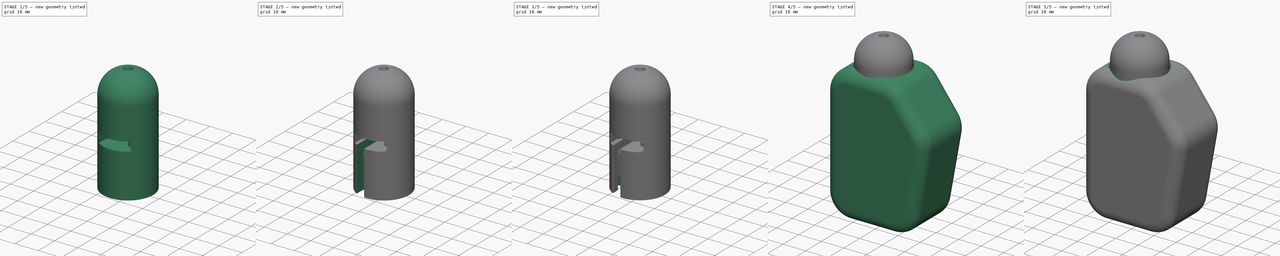
[diagram: build sequence overview — one tinted view per stage of 5, left to right]
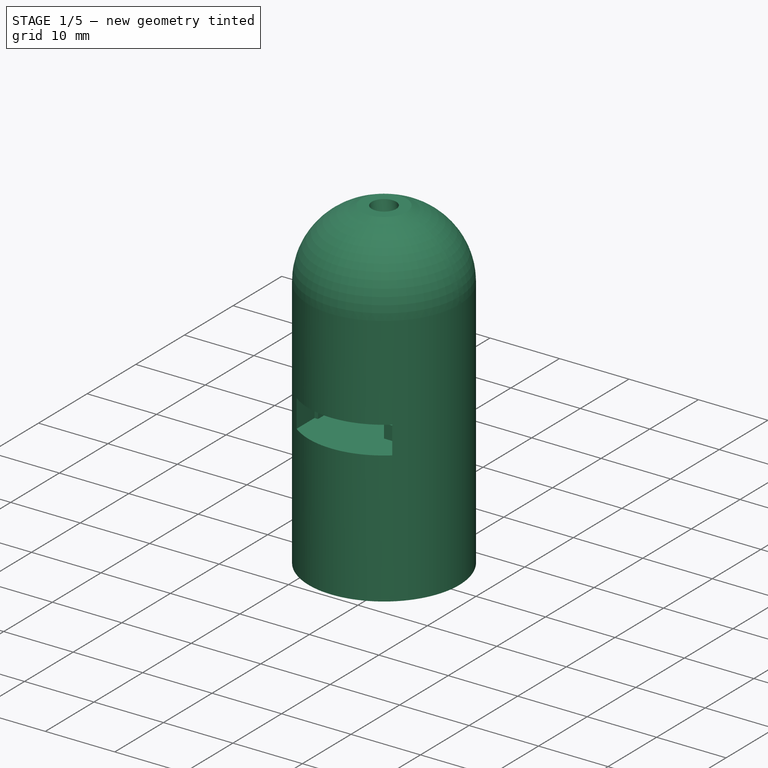
[diagram: stage 1 of 5 — iso view after this stage's code; geometry added in this stage tinted green]
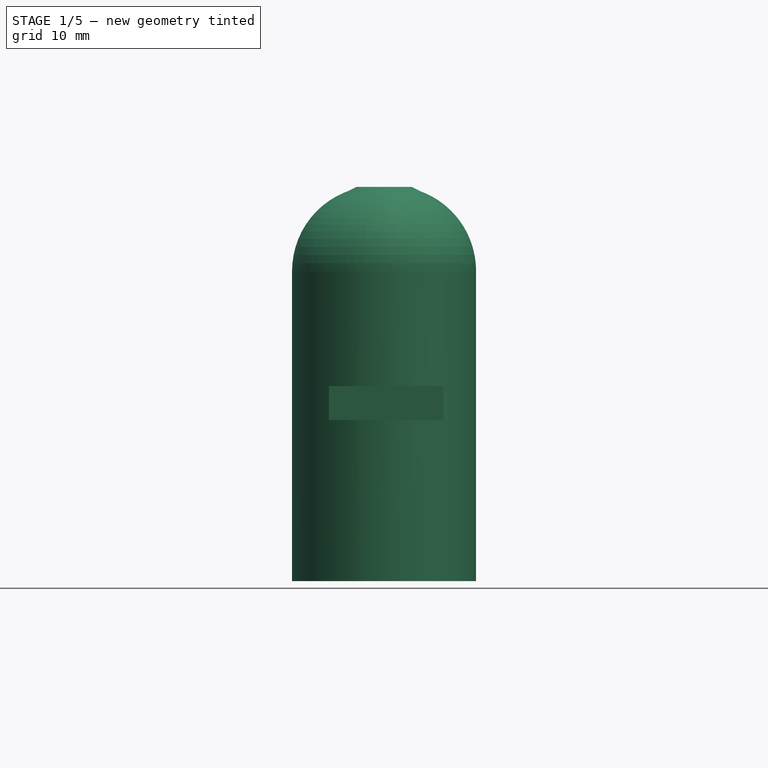
[diagram: stage 1 of 5 — front view after this stage's code; geometry added in this stage tinted green]
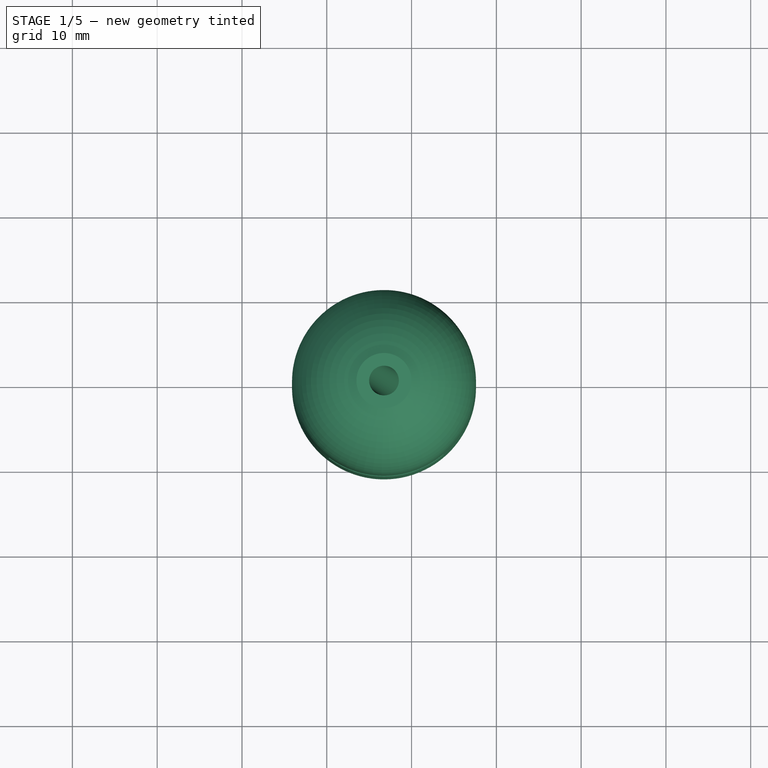
[diagram: stage 1 of 5 — top view after this stage's code; geometry added in this stage tinted green]
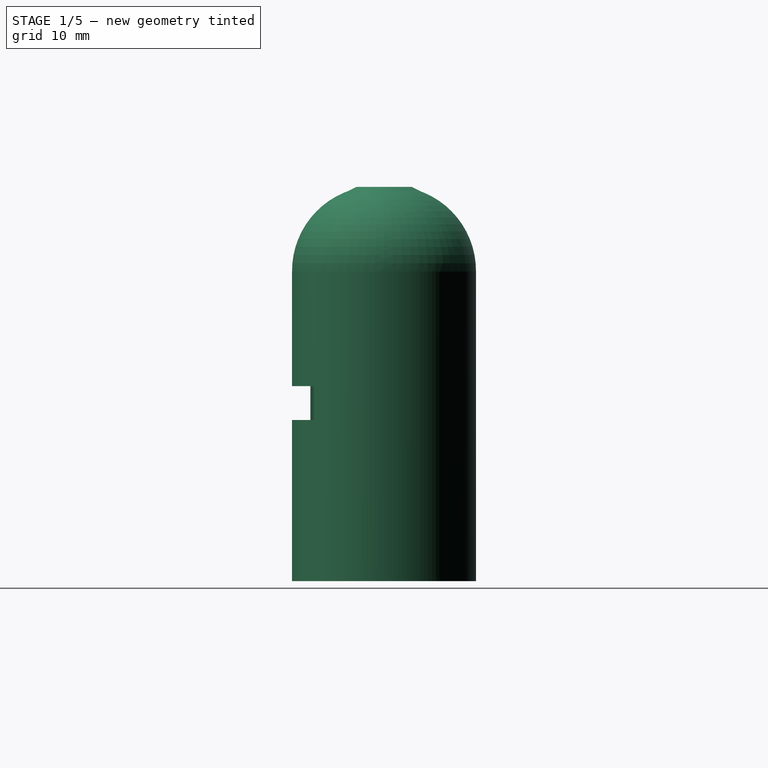
[diagram: stage 1 of 5 — right view after this stage's code; geometry added in this stage tinted green]
FCSTD DOCUMENT  (FreeCAD 1.0RUnknown)
Label: Device_V6
License: All rights reserved
objects: PartDesign::Fillet×32, Sketcher::SketchObject×21, PartDesign::Pocket×12, PartDesign::Pad×5, PartDesign::Revolution×2, Part::Feature×2, PartDesign::SubtractiveLoft×2, PartDesign::Body×2, PartDesign::SubtractivePipe×1
note: 208 computed .brp shape members not serialized (recipe doc carries the construction recipe); baked Part::Feature solids carry a one-line shape summary decoded from their .brp

FEATURE [Sketcher::SketchObject] Sketch003
  ArcFitTolerance = 1e-06
  AttachmentSupport = -> [XZ_Plane001]
  FullyConstrained = true
  MakeInternals = false
  MapMode = 5
  Placement = pos=(0,0,0) rot=(1,0,0;1.5708rad)
  sketch-geometry (9):
    g0: LineSegment StartX=19 StartY=87 StartZ=0 EndX=19 EndY=77 EndZ=0
    g1: LineSegment StartX=19 StartY=77 StartZ=0 EndX=27.6 EndY=77 EndZ=0
    g2: LineSegment StartX=19 StartY=87 StartZ=0 EndX=20 EndY=87 EndZ=0
    g3: LineSegment StartX=20 StartY=87 StartZ=0 EndX=21 EndY=86.5 EndZ=0
    g4: ArcOfCircle CenterX=17.6068 CenterY=77.1 CenterZ=0 NormalX=0 NormalY=0 NormalZ=1 AngleXU=0 Radius=9.99368 StartAngle=6.27318 EndAngle=7.50756
    g5: LineSegment [constr] StartX=0 StartY=0 StartZ=0 EndX=27.6 EndY=0 EndZ=0
    g6: LineSegment [constr] StartX=27.6 StartY=0 StartZ=0 EndX=27.6 EndY=77 EndZ=0
    g7: LineSegment [constr] StartX=27.6 StartY=77 StartZ=0 EndX=0 EndY=77 EndZ=0
    g8: LineSegment [constr] StartX=0 StartY=77 StartZ=0 EndX=0 EndY=0 EndZ=0
  constraints (26):
    c: Vertical(g0)
    c: Coincident(g0,g1)
    c: Horizontal(g1)
    c: Coincident(g0,g2)
    c: Horizontal(g2)
    c: Coincident(g2,g3)
    c: Coincident(g4,g3)
    c: Coincident(g4,g1)
    c: DistanceY(g0,g0) = 10
    c: DistanceY(g3,g2) = 0.5
    c: DistanceX(g2,g2) = 1
    c: DistanceX(g2,g3) = 1
    c: DistanceX(g1,g1) = 8.6
    c: Coincident(g5,g6)
    c: Coincident(g6,g7)
    c: Coincident(g7,g8)
    c: Coincident(g8,g5)
    c: Horizontal(g5)
    c: Horizontal(g7)
    c: Vertical(g6)
    c: Vertical(g8)
    c: Coincident(g5,g-1)
    c: Coincident(g6,g1)
    c: DistanceY(g8,g8) = 77
    c: DistanceX(g7,g7) = 27.6
    c: DistanceY(g0,g4) = 0.1
FEATURE [Sketcher::SketchObject] Sketch004
  ArcFitTolerance = 1e-06
  AttachmentSupport = -> [XZ_Plane001]
  FullyConstrained = true
  MakeInternals = false
  MapMode = 5
  Placement = pos=(0,0,0) rot=(1,0,0;1.5708rad)
  sketch-geometry (7):
    g0: LineSegment StartX=16.75 StartY=87 StartZ=0 EndX=16.75 EndY=77 EndZ=0
    g1: LineSegment [constr] StartX=0 StartY=0 StartZ=0 EndX=27.5 EndY=0 EndZ=0
    g2: LineSegment [constr] StartX=27.5 StartY=0 StartZ=0 EndX=27.5 EndY=77 EndZ=0
    g3: LineSegment [constr] StartX=27.5 StartY=77 StartZ=0 EndX=0 EndY=77 EndZ=0
    g4: LineSegment [constr] StartX=0 StartY=77 StartZ=0 EndX=0 EndY=0 EndZ=0
    g5: GeomPoint [constr] X=10 Y=77 Z=0
    g6: GeomPoint [constr] X=23.5 Y=77 Z=0
  constraints (18):
    c: Vertical(g0)
    c: DistanceY(g0,g0) = 10
    c: Coincident(g1,g2)
    c: Coincident(g2,g3)
    c: Coincident(g3,g4)
    c: Coincident(g4,g1)
    c: Horizontal(g1)
    c: Horizontal(g3)
    c: Vertical(g2)
    c: Vertical(g4)
    c: Coincident(g1,g-1)
    c: DistanceY(g4,g4) = 77
    c: DistanceX(g3,g3) = 27.5
    c: PointOnObject(g5,g3)
    c: PointOnObject(g6,g3)
    c: DistanceX(g6,g2) = 4
    c: DistanceX(g3,g5) = 10
    c: Symmetric(g5,g6,g0)
FEATURE [PartDesign::Revolution] Revolution
  Angle = 360
  Angle2 = 60
  Axis = (0,-2e-16,-1)
  Base = (16.75,1.93e-14,87)
  Placement = pos=(0,0,0) rot=(1,0,0;1.5708rad)
  Profile = -> Sketch003
  ReferenceAxis = -> Sketch004 [Edge1]
  Refine = true
  Reversed = true
  Suppressed = false
  Type = 0
FEATURE [PartDesign::Pad] Pad001
  BaseFeature = -> Revolution
  Direction = (0,-2e-16,-1)
  Length = 36.5
  Length2 = 10
  Placement = pos=(0,0,0) rot=(1,0,0;1.5708rad)
  Profile = -> Revolution [Face2]
  Refine = true
  Suppressed = false
  Type = 0
FEATURE [Part::Feature] Part__Feature001  label="BME280-5V"
  Placement = pos=(10.5,-5,61.5) rot=(0,0,1;0rad)
  shape: bbox 13 x 10 x 3.53 mm, 88 faces (baked)
FEATURE [Sketcher::SketchObject] Sketch012
  ArcFitTolerance = 1e-06
  AttachmentSupport = -> [XZ_Plane001]
  FullyConstrained = true
  MakeInternals = false
  MapMode = 5
  Placement = pos=(0,0,0) rot=(1,0,0;1.5708rad)
  sketch-geometry (4):
    g0: LineSegment StartX=10.25 StartY=63.5 StartZ=0 EndX=10.25 EndY=59.5 EndZ=0
    g1: LineSegment StartX=10.25 StartY=59.5 StartZ=0 EndX=23.75 EndY=59.5 EndZ=0
    g2: LineSegment StartX=23.75 StartY=59.5 StartZ=0 EndX=23.75 EndY=63.5 EndZ=0
    g3: LineSegment StartX=23.75 StartY=63.5 StartZ=0 EndX=10.25 EndY=63.5 EndZ=0
  constraints (12):
    c: Coincident(g0,g1)
    c: Coincident(g1,g2)
    c: Coincident(g2,g3)
    c: Coincident(g3,g0)
    c: Vertical(g0)
    c: Vertical(g2)
    c: Horizontal(g1)
    c: Horizontal(g3)
    c: Distance(g0,g2) = 13.5
    c: Distance(g1,g3) = 4
    c: DistanceY(g-1,g0) = 59.5
    c: DistanceX(g-1,g0) = 10.25
FEATURE [PartDesign::Pocket] Pocket004
  BaseFeature = -> Pad001
  Direction = (0,1,-2e-16)
  Length = 5
  Length2 = 13
  Placement = pos=(0,0,0) rot=(1,0,0;1.5708rad)
  Profile = -> Sketch012
  ReferenceAxis = -> Sketch012 [N_Axis]
  Refine = true
  Suppressed = false
  Type = 4
FEATURE [Sketcher::SketchObject] Sketch013
  ArcFitTolerance = 1e-06
  AttachmentSupport = -> [Pocket004]
  FullyConstrained = true
  MakeInternals = false
  MapMode = 5
  Placement = pos=(0,2.79e-14,63.5) rot=(1,0,0;3.14159rad)
  sketch-geometry (2):
    g0: Circle CenterX=21 CenterY=2.3 CenterZ=0 NormalX=0 NormalY=0 NormalZ=1 AngleXU=0 Radius=2
    g1: Circle CenterX=21 CenterY=2.3 CenterZ=0 NormalX=0 NormalY=0 NormalZ=1 AngleXU=0 Radius=3.3
  constraints (5):
    c: Diameter(g0) = 4
    c: DistanceY(g-1,g0) = 2.3
    c: DistanceX(g-1,g0) = 21
    c: Diameter(g1) = 6.6
    c: Coincident(g1,g0)
FEATURE [Sketcher::SketchObject] Sketch015
  ArcFitTolerance = 1e-06
  AttachmentSupport = -> [Pocket004]
  ExternalGeometry = -> [Pocket004]
  FullyConstrained = true
  MakeInternals = false
  MapMode = 5
  Placement = pos=(0,3.83e-14,87) rot=(0,0,1;3.14159rad)
  sketch-geometry (1):
    g0: Circle CenterX=-16.75 CenterY=0 CenterZ=0 NormalX=0 NormalY=0 NormalZ=1 AngleXU=0 Radius=2.25
  constraints (2):
    c: Coincident(g0,g-3)
    c: Equal(g0,g-3)
FEATURE [PartDesign::Pad] Pad002
  BaseFeature = -> Pocket004
  Direction = (0,0,1)
  Length = 23.5
  Length2 = 10
  Placement = pos=(0,0,0) rot=(1,0,0;1.5708rad)
  Profile = -> Sketch015
  ReferenceAxis = -> Sketch015 [N_Axis]
  Refine = true
  Reversed = true
  Suppressed = false
  Type = 0
FEATURE [PartDesign::Pocket] Pocket005
  BaseFeature = -> Pad002
  Direction = (0,0,1)
  Length = 1
  Length2 = 5
  Placement = pos=(0,0,0) rot=(1,0,0;1.5708rad)
  Profile = -> Sketch013
  ReferenceAxis = -> Sketch013 [N_Axis]
  Refine = true
  Suppressed = false
  Type = 0
FEATURE [Sketcher::SketchObject] Sketch016
  ArcFitTolerance = 1e-06
  AttachmentSupport = -> [Pocket005]
  ExternalGeometry = -> [Pocket005]
  FullyConstrained = true
  MakeInternals = false
  MapMode = 5
  Placement = pos=(0,3.18e-14,63.5) rot=(1,0,0;3.14159rad)
  sketch-geometry (1):
    g0: Circle CenterX=21 CenterY=2.3 CenterZ=0 NormalX=0 NormalY=0 NormalZ=1 AngleXU=0 Radius=2
  constraints (2):
    c: Coincident(g0,g-3)
    c: Equal(g0,g-3)
FEATURE [PartDesign::Pocket] Pocket006
  BaseFeature = -> Pocket005
  Direction = (0,0,1)
  Length = 5
  Length2 = 5
  Placement = pos=(0,0,0) rot=(1,0,0;1.5708rad)
  Profile = -> Sketch016
  ReferenceAxis = -> Sketch016 [N_Axis]
  Refine = true
  Suppressed = false
  Type = 0
FEATURE [Sketcher::SketchObject] Sketch017
  ArcFitTolerance = 1e-06
  AttachmentSupport = -> [XZ_Plane001]
  ExternalGeometry = -> [Pocket006]
  FullyConstrained = true
  MakeInternals = false
  MapMode = 5
  Placement = pos=(0,0,0) rot=(1,0,0;1.5708rad)
  sketch-geometry (7):
    g0: LineSegment StartX=9.25 StartY=75.5 StartZ=0 EndX=9.46286 EndY=70.5 EndZ=0
    g1: LineSegment StartX=15.2301 StartY=70.6227 StartZ=0 EndX=15.2301 EndY=75 EndZ=0
    g2: LineSegment StartX=21 StartY=75 StartZ=0 EndX=21 EndY=68.5 EndZ=0
    g3: ArcOfCircle CenterX=12.3452 CenterY=70.6227 CenterZ=0 NormalX=0 NormalY=0 NormalZ=1 AngleXU=0 Radius=2.88494 StartAngle=3.18414 EndAngle=6.28319
    g4: ArcOfCircle CenterX=18.1151 CenterY=75 CenterZ=0 NormalX=0 NormalY=0 NormalZ=1 AngleXU=0 Radius=2.88494 StartAngle=1.6e-15 EndAngle=3.14159
    g5: ArcOfCircle CenterX=14.9407 CenterY=75.7423 CenterZ=0 NormalX=0 NormalY=0 NormalZ=1 AngleXU=0 Radius=5.69588 StartAngle=1.96559 EndAngle=3.18414
    g6: ArcOfCircle CenterX=10.25 CenterY=87 CenterZ=0 NormalX=0 NormalY=0 NormalZ=1 AngleXU=0 Radius=6.5 StartAngle=5.10718 EndAngle=6.28319
  constraints (18):
    c: Vertical(g1)
    c: Vertical(g2)
    c: Symmetric(g-3,g-3,g2)
    c: Tangent(g3,g0) = -1.5708
    c: Tangent(g3,g1) = -1.5708
    c: Tangent(g4,g1) = 1.5708
    c: Tangent(g4,g2) = 1.5708
    c: Symmetric(g-4,g-4,g6)
    c: Tangent(g6,g5) = 1.5708
    c: DistanceY(g-1,g2) = 75
    c: Perpendicular(g6,g-4)
    c: Tangent(g5,g0) = -1.5708
    c: DistanceY(g5,g6) = 6
    c: DistanceX(g5,g6) = 4
    c: DistanceY(g0,g5) = 5.5
    c: DistanceX(g0,g5) = 3.5
    c: DistanceY(g0,g0) = 5
    c: Equal(g3,g4)
FEATURE [Sketcher::SketchObject] Sketch018
  ArcFitTolerance = 1e-06
  AttachmentSupport = -> [Pocket006]
  ExternalGeometry = -> [Pocket006]
  FullyConstrained = true
  MakeInternals = false
  MapMode = 5
  Placement = pos=(0,3.83e-14,87) rot=(0,0,1;3.14159rad)
  sketch-geometry (1):
    g0: Circle CenterX=-16.75 CenterY=0 CenterZ=0 NormalX=0 NormalY=0 NormalZ=1 AngleXU=0 Radius=1.75
  constraints (2):
    c: Coincident(g0,g-3)
    c: Diameter(g0) = 3.5
FEATURE [PartDesign::SubtractivePipe] SubtractivePipe
  AuxilleryCurvelinear = true
  AuxillerySpineTangent = false
  BaseFeature = -> Pocket006
  Binormal = (0,0,0)
  Mode = 0
  Placement = pos=(0,0,0) rot=(1,0,0;1.5708rad)
  Profile = -> Sketch018
  Refine = true
  Spine = -> Sketch017 [Edge1,Edge2,Edge3,Edge4,Edge5,Edge6]
  SpineTangent = false
  Suppressed = false
  Transformation = 1
  Transition = 0
FEATURE [PartDesign::SubtractiveLoft] SubtractiveLoft
  BaseFeature = -> SubtractivePipe
  Closed = false
  Placement = pos=(0,0,0) rot=(1,0,0;1.5708rad)
  Profile = -> SubtractivePipe [Edge45]
  Refine = true
  Ruled = false
  Sections = -> [SubtractivePipe]
  Suppressed = false
FEATURE [Sketcher::SketchObject] Sketch019
  ArcFitTolerance = 1e-06
  AttachmentSupport = -> [SubtractiveLoft]
  ExternalGeometry = -> [SubtractiveLoft]
  FullyConstrained = true
  MakeInternals = false
  MapMode = 5
  Placement = pos=(0,2.62e-14,59.5) rot=(0,0,1;3.14159rad)
  sketch-geometry (8):
    g0: LineSegment StartX=-23.75 StartY=-5 StartZ=0 EndX=-20.25 EndY=-5 EndZ=0
    g1: LineSegment StartX=-20.25 StartY=-5 StartZ=0 EndX=-20.25 EndY=5 EndZ=0
    g2: LineSegment StartX=-20.25 StartY=5 StartZ=0 EndX=-23.75 EndY=5 EndZ=0
    g3: LineSegment StartX=-23.75 StartY=5 StartZ=0 EndX=-23.75 EndY=-5 EndZ=0
    g4: LineSegment StartX=-10.25 StartY=-5 StartZ=0 EndX=-10.25 EndY=5 EndZ=0
    g5: LineSegment StartX=-10.25 StartY=5 StartZ=0 EndX=-10.75 EndY=5 EndZ=0
    g6: LineSegment StartX=-10.75 StartY=5 StartZ=0 EndX=-10.75 EndY=-5 EndZ=0
    g7: LineSegment StartX=-10.75 StartY=-5 StartZ=0 EndX=-10.25 EndY=-5 EndZ=0
  constraints (22):
    c: Coincident(g0,g1)
    c: Coincident(g1,g2)
    c: Coincident(g2,g3)
    c: Coincident(g3,g0)
    c: Horizontal(g0)
    c: Horizontal(g2)
    c: Vertical(g1)
    c: Vertical(g3)
    c: Coincident(g0,g-3)
    c: Coincident(g4,g5)
    c: Coincident(g5,g6)
    c: Coincident(g6,g7)
    c: Coincident(g7,g4)
    c: Vertical(g4)
    c: Vertical(g6)
    c: Horizontal(g5)
    c: Horizontal(g7)
    c: Distance(g4,g6) = 0.5
    c: Coincident(g4,g-3)
    c: Equal(g6,g1)
    c: DistanceY(g4,g4) = 10
    c: DistanceX(g2,g2) = 3.5
FEATURE [PartDesign::Pad] Pad003
  BaseFeature = -> SubtractiveLoft
  Direction = (0,0,1)
  Length = 2
  Length2 = 10
  Placement = pos=(0,0,0) rot=(1,0,0;1.5708rad)
  Profile = -> Sketch019
  ReferenceAxis = -> Sketch019 [N_Axis]
  Refine = true
  Suppressed = false
  Type = 0
FEATURE [Sketcher::SketchObject] Sketch024
  ArcFitTolerance = 1e-06
  AttachmentSupport = -> [XZ_Plane001]
  FullyConstrained = true
  MakeInternals = false
  MapMode = 5
  Placement = pos=(0,0,0) rot=(1,0,0;1.5708rad)
  sketch-geometry (6):
    g0: LineSegment StartX=16.75 StartY=87 StartZ=0 EndX=16.75 EndY=65 EndZ=0
    g1: LineSegment StartX=16.75 StartY=65 StartZ=0 EndX=27.6 EndY=65 EndZ=0
    g2: LineSegment StartX=27.6 StartY=65 StartZ=0 EndX=27.6 EndY=77 EndZ=0
    g3: ArcOfCircle CenterX=17.6068 CenterY=77.1 CenterZ=0 NormalX=0 NormalY=0 NormalZ=1 AngleXU=0 Radius=9.99368 StartAngle=6.27318 EndAngle=7.50756
    g4: LineSegment StartX=20 StartY=87 StartZ=0 EndX=21 EndY=86.5 EndZ=0
    g5: LineSegment StartX=20 StartY=87 StartZ=0 EndX=16.75 EndY=87 EndZ=0
  constraints (15):
    c: Vertical(g0)
    c: Symmetric(g-3,g-3,g0)
    c: Horizontal(g-4,g0)
    c: Coincident(g1,g0)
    c: PointOnObject(g1,g-6)
    c: Horizontal(g1)
    c: Coincident(g2,g1)
    c: Coincident(g-6,g2)
    c: Coincident(g3,g-5)
    c: Coincident(g3,g2)
    c: Equal(g-5,g3)
    c: Coincident(g4,g-3)
    c: Coincident(g4,g3)
    c: Coincident(g5,g4)
    c: Coincident(g5,g0)
FEATURE [PartDesign::Revolution] Revolution001
  Angle = 360
  Angle2 = 60
  Axis = (0,-2e-16,-1)
  Base = (16.75,1.93e-14,87)
  BaseFeature = -> Pad003
  Placement = pos=(0,0,0) rot=(1,0,0;1.5708rad)
  Profile = -> Sketch024
  ReferenceAxis = -> Sketch024 [Edge1]
  Refine = true
  Reversed = true
  Suppressed = false
  Type = 0
FEATURE [Sketcher::SketchObject] Sketch026
  ArcFitTolerance = 1e-06
  AttachmentSupport = -> [Revolution001]
  ExternalGeometry = -> [Revolution001]
  FullyConstrained = true
  MakeInternals = false
  MapMode = 5
  Placement = pos=(0,3.83e-14,87) rot=(0,0,1;3.14159rad)
  sketch-geometry (1):
    g0: Circle CenterX=-16.75 CenterY=0 CenterZ=0 NormalX=0 NormalY=0 NormalZ=1 AngleXU=0 Radius=1.75
  constraints (2):
    c: Coincident(g0,g-3)
    c: Diameter(g0) = 3.5
FEATURE [PartDesign::SubtractiveLoft] SubtractiveLoft001
  BaseFeature = -> Revolution001
  Closed = false
  Placement = pos=(0,0,0) rot=(1,0,0;1.5708rad)
  Profile = -> Revolution001 [Edge44]
  Refine = true
  Ruled = false
  Sections = -> [Sketch026]
  Suppressed = false
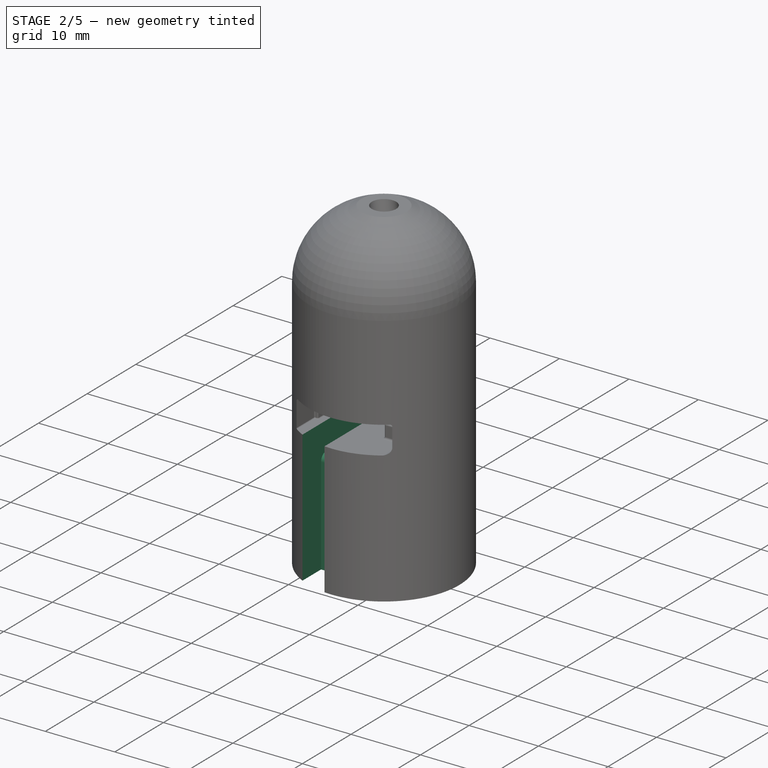
[diagram: stage 2 of 5 — iso view after this stage's code; geometry added in this stage tinted green]
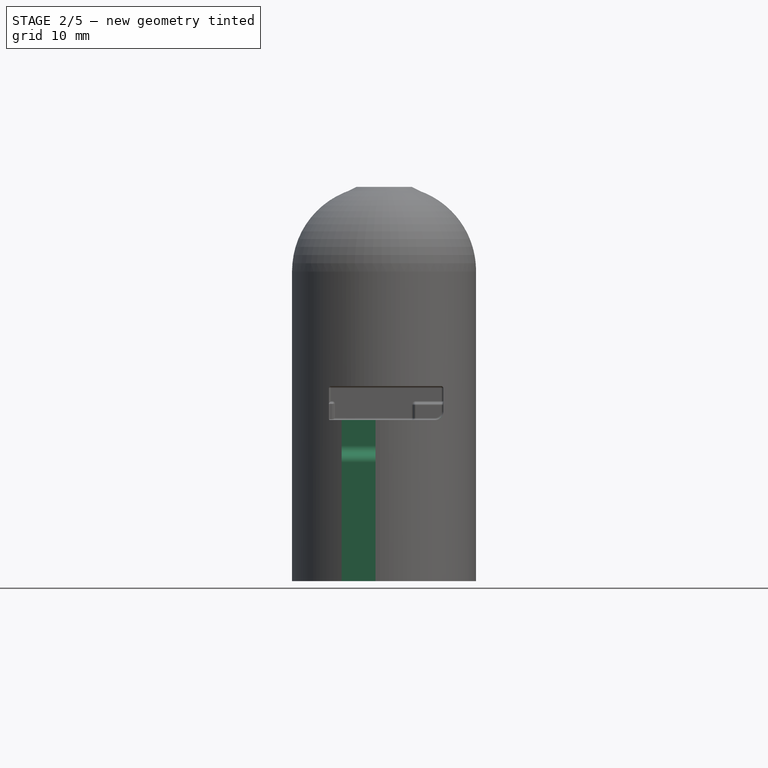
[diagram: stage 2 of 5 — front view after this stage's code; geometry added in this stage tinted green]
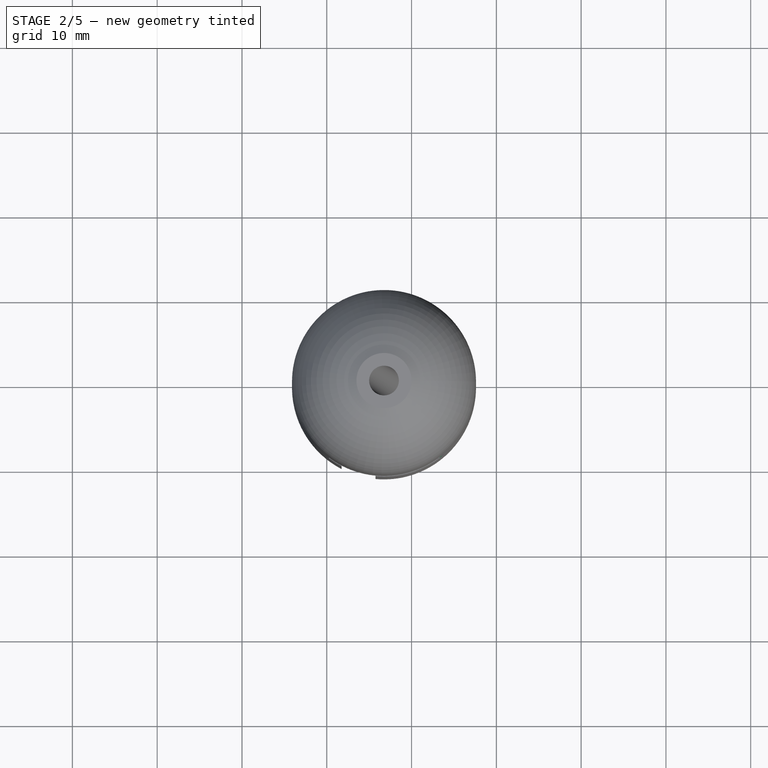
[diagram: stage 2 of 5 — top view after this stage's code; geometry added in this stage tinted green]
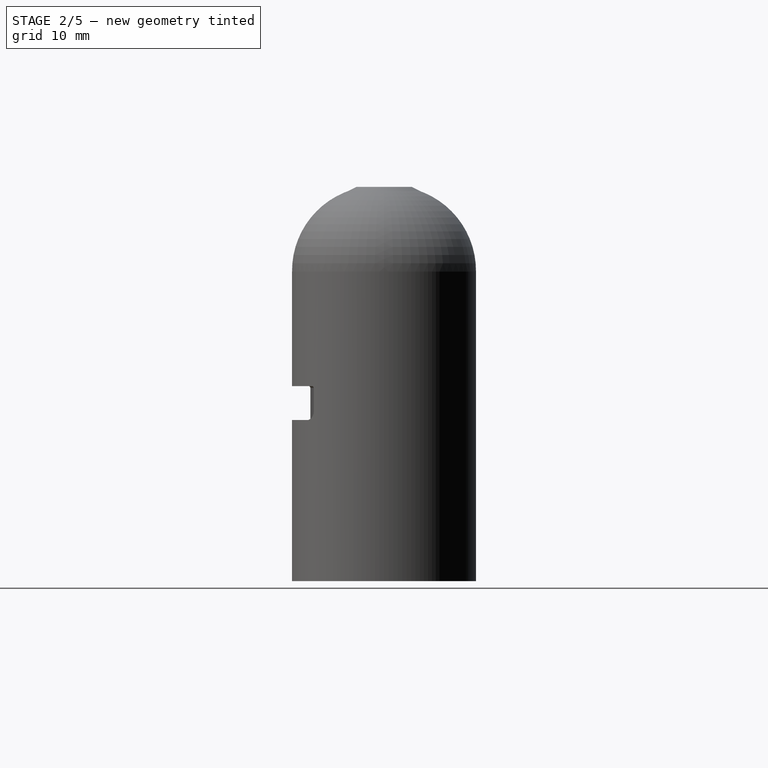
[diagram: stage 2 of 5 — right view after this stage's code; geometry added in this stage tinted green]
FEATURE [Sketcher::SketchObject] Sketch028
  ArcFitTolerance = 1e-06
  AttachmentOffset = pos=(0,0,-4) rot=(0,0,1;0rad)
  AttachmentSupport = -> [XZ_Plane001]
  FullyConstrained = true
  MakeInternals = false
  MapMode = 5
  Placement = pos=(0,4,-9e-16) rot=(1,0,0;1.5708rad)
  sketch-geometry (4):
    g0: LineSegment StartX=11.75 StartY=59.5 StartZ=0 EndX=11.75 EndY=55.5 EndZ=0
    g1: LineSegment StartX=11.75 StartY=55.5 StartZ=0 EndX=15.75 EndY=55.5 EndZ=0
    g2: LineSegment StartX=15.75 StartY=55.5 StartZ=0 EndX=15.75 EndY=59.5 EndZ=0
    g3: LineSegment StartX=15.75 StartY=59.5 StartZ=0 EndX=11.75 EndY=59.5 EndZ=0
  constraints (12):
    c: Coincident(g0,g1)
    c: Coincident(g1,g2)
    c: Coincident(g2,g3)
    c: Coincident(g3,g0)
    c: Vertical(g0)
    c: Vertical(g2)
    c: Horizontal(g1)
    c: Horizontal(g3)
    c: PointOnObject(g0,g-3)
    c: DistanceY(g0,g0) = 4
    c: DistanceX(g1,g1) = 4
    c: Vertical(g-4,g0)
FEATURE [Sketcher::SketchObject] Sketch027
  ArcFitTolerance = 1e-06
  FullyConstrained = true
  MakeInternals = false
  MapMode = 5
  Placement = pos=(0,1.78e-14,40.5) rot=(1,0,0;3.14159rad)
  sketch-geometry (1):
    g0: Circle CenterX=16.75 CenterY=0 CenterZ=0 NormalX=0 NormalY=0 NormalZ=1 AngleXU=0 Radius=2.25
  constraints (3):
    c: PointOnObject(g0,g-1)
    c: Vertical(g0,g-3)
    c: Equal(g0,g-4)
FEATURE [PartDesign::Pad] Pad004
  BaseFeature = -> SubtractiveLoft001
  Direction = (0,0,-1)
  Length = 19
  Length2 = 10
  Placement = pos=(0,0,0) rot=(1,0,0;1.5708rad)
  Profile = -> Sketch027
  ReferenceAxis = -> Sketch027 [N_Axis]
  Refine = true
  Reversed = true
  Suppressed = false
  Type = 0
FEATURE [PartDesign::Pocket] Pocket008
  BaseFeature = -> Pad004
  Direction = (0,1,-2e-16)
  Length = 15
  Length2 = 5
  Placement = pos=(0,0,0) rot=(1,0,0;1.5708rad)
  Profile = -> Sketch028
  ReferenceAxis = -> Sketch028 [N_Axis]
  Refine = true
  Reversed = true
  Suppressed = false
  Type = 0
FEATURE [PartDesign::Pocket] Pocket009
  BaseFeature = -> Pocket008
  Direction = (0,0,1)
  Length = 3
  Length2 = 5
  Placement = pos=(0,0,0) rot=(1,0,0;1.5708rad)
  Profile = -> Pocket008 [Face23]
  Refine = true
  Reversed = true
  Suppressed = false
  Type = 0
FEATURE [PartDesign::Fillet] Fillet016
  Base = -> Pocket009 [Edge38,Edge43,Edge23]
  BaseFeature = -> Pocket009
  Placement = pos=(0,0,0) rot=(1,0,0;1.5708rad)
  Radius = 0.25
  Refine = true
  SupportTransform = false
  Suppressed = false
  UseAllEdges = false
FEATURE [PartDesign::Fillet] Fillet017
  Base = -> Fillet016 [Edge26]
  BaseFeature = -> Fillet016
  Placement = pos=(0,0,0) rot=(1,0,0;1.5708rad)
  Radius = 1
  Refine = true
  SupportTransform = false
  Suppressed = false
  UseAllEdges = false
FEATURE [PartDesign::Fillet] Fillet018
  Base = -> Fillet017 [Edge32,Edge28,Edge30,Edge65,Edge66,Edge67,Edge45]
  BaseFeature = -> Fillet017
  Placement = pos=(0,0,0) rot=(1,0,0;1.5708rad)
  Radius = 0.125
  Refine = true
  SupportTransform = false
  Suppressed = false
  UseAllEdges = false
FEATURE [PartDesign::Fillet] Fillet019
  Base = -> Fillet018 [Edge28,Edge30,Edge73,Edge74,Edge77,Edge47,Edge49,Edge84,Edge48,Edge79,Edge86]
  BaseFeature = -> Fillet018
  Placement = pos=(0,0,0) rot=(1,0,0;1.5708rad)
  Radius = 0.25
  Refine = true
  SupportTransform = false
  Suppressed = false
  UseAllEdges = false
FEATURE [PartDesign::Fillet] Fillet020
  Base = -> Fillet019 [Edge1]
  BaseFeature = -> Fillet019
  Placement = pos=(0,0,0) rot=(1,0,0;1.5708rad)
  Radius = 0.25
  Refine = true
  SupportTransform = false
  Suppressed = false
  UseAllEdges = false
FEATURE [PartDesign::Fillet] Fillet021
  Base = -> Fillet020 [Edge52]
  BaseFeature = -> Fillet020
  Placement = pos=(0,0,0) rot=(1,0,0;1.5708rad)
  Radius = 1
  Refine = true
  SupportTransform = false
  Suppressed = false
  UseAllEdges = false
FEATURE [Sketcher::SketchObject] Sketch029
  ArcFitTolerance = 1e-06
  AttachmentSupport = -> [Fillet021]
  ExternalGeometry = -> [Fillet021]
  FullyConstrained = true
  MakeInternals = false
  MapMode = 5
  Placement = pos=(0,2.44e-14,55.5) rot=(0,0,1;3.14159rad)
  sketch-geometry (4):
    g0: LineSegment StartX=-15.75 StartY=10.8038 StartZ=0 EndX=-15.75 EndY=5.80382 EndZ=0
    g1: LineSegment StartX=-15.75 StartY=5.80382 StartZ=0 EndX=-11.75 EndY=5.80382 EndZ=0
    g2: LineSegment StartX=-11.75 StartY=5.80382 StartZ=0 EndX=-11.75 EndY=10.8038 EndZ=0
    g3: LineSegment StartX=-11.75 StartY=10.8038 StartZ=0 EndX=-15.75 EndY=10.8038 EndZ=0
  constraints (11):
    c: Coincident(g0,g1)
    c: Coincident(g1,g2)
    c: Coincident(g2,g3)
    c: Coincident(g3,g0)
    c: Vertical(g0)
    c: Vertical(g2)
    c: Horizontal(g1)
    c: Horizontal(g3)
    c: Coincident(g0,g-3)
    c: Vertical(g2,g-3)
    c: DistanceY(g2,g2) = 5
FEATURE [PartDesign::Pocket] Pocket010
  BaseFeature = -> Fillet021
  Direction = (0,0,-1)
  Length = 17
  Length2 = 5
  Placement = pos=(0,0,0) rot=(1,0,0;1.5708rad)
  Profile = -> Sketch029
  ReferenceAxis = -> Sketch029 [N_Axis]
  Refine = true
  Suppressed = false
  Type = 0
FEATURE [PartDesign::Fillet] Fillet022
  Base = -> Pocket010 [Edge22]
  BaseFeature = -> Pocket010
  Placement = pos=(0,0,0) rot=(1,0,0;1.5708rad)
  Radius = 1
  Refine = true
  SupportTransform = false
  Suppressed = false
  UseAllEdges = false
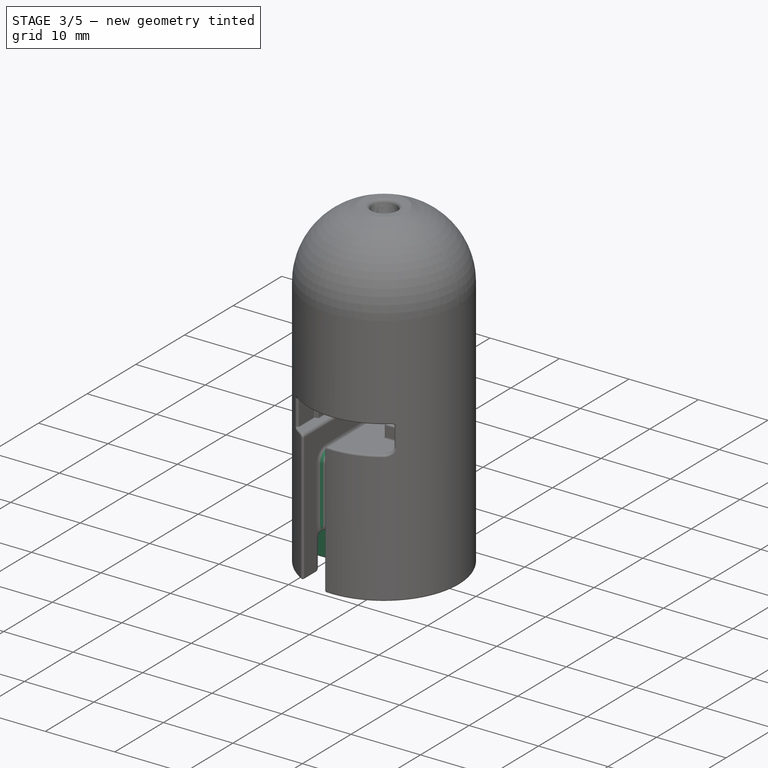
[diagram: stage 3 of 5 — iso view after this stage's code; geometry added in this stage tinted green]
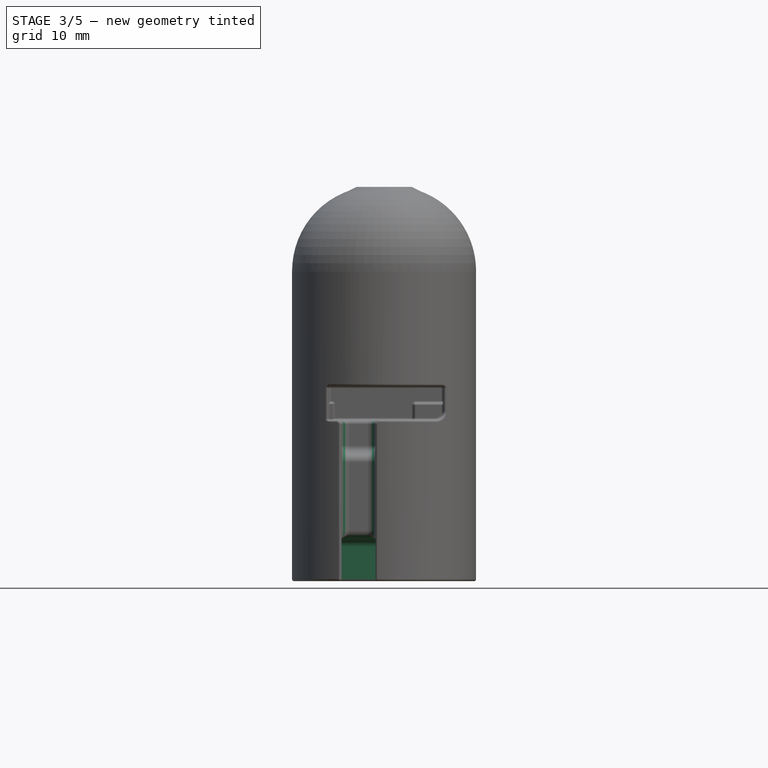
[diagram: stage 3 of 5 — front view after this stage's code; geometry added in this stage tinted green]
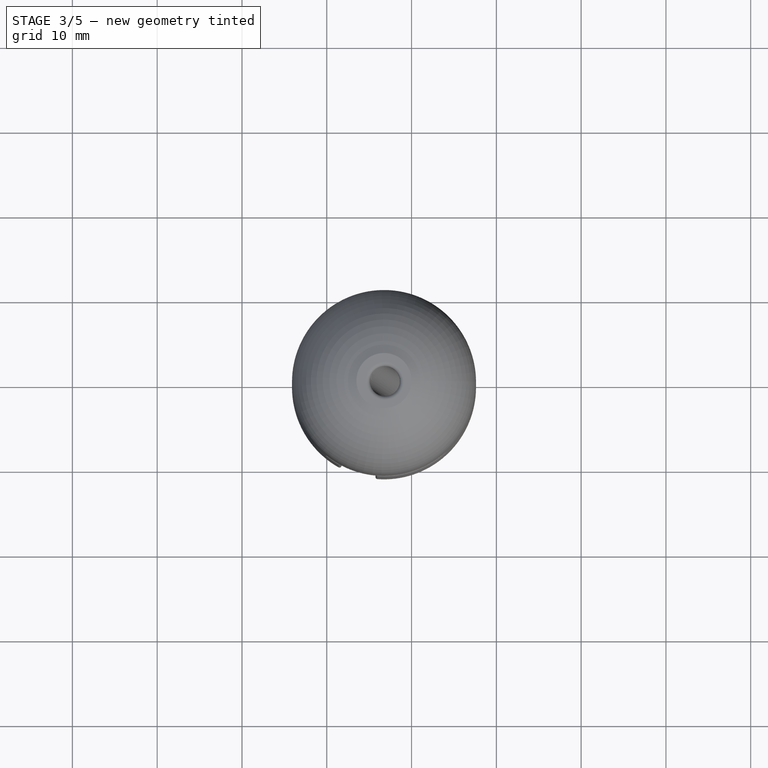
[diagram: stage 3 of 5 — top view after this stage's code; geometry added in this stage tinted green]
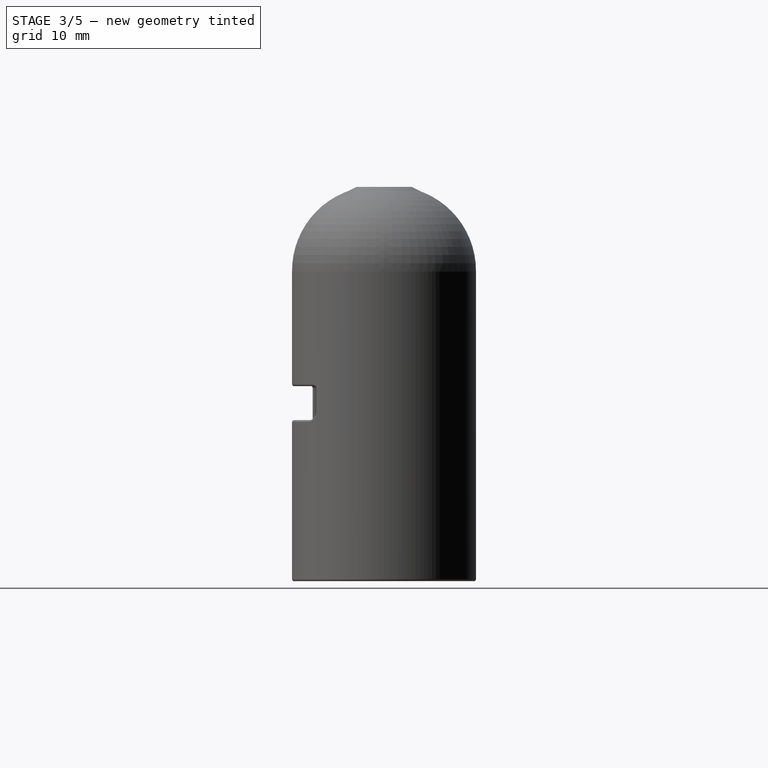
[diagram: stage 3 of 5 — right view after this stage's code; geometry added in this stage tinted green]
FEATURE [PartDesign::Body] Body  label="Main-body"
  AllowCompound = true
  Group = -> [Sketch,Pad,Fillet,Fillet001,Sketch006,Pocket,Sketch008,Pocket001,Sketch009,Pocket002,Sketch010,Pocket003,Fillet002,Fillet003,Fillet004,Fillet005,Fillet006,Fillet007,Fillet008,Fillet009,Fillet010,Fillet011,Fillet012,Fillet013,Fillet014,Fillet015,Sketch021,Pocket007]
  Origin = -> Origin
  Tip = -> Pocket007
FEATURE [Sketcher::SketchObject] Sketch030
  ArcFitTolerance = 1e-06
  AttachmentSupport = -> [Fillet022]
  ExternalGeometry = -> [Fillet022]
  FullyConstrained = true
  MakeInternals = false
  MapMode = 5
  Placement = pos=(0,1.78e-14,40.5) rot=(1,0,0;3.14159rad)
  sketch-geometry (4):
    g0: LineSegment StartX=7.75 StartY=5.80382 StartZ=0 EndX=7.75 EndY=3 EndZ=0
    g1: LineSegment StartX=7.75 StartY=3 StartZ=0 EndX=25.75 EndY=3 EndZ=0
    g2: LineSegment StartX=25.75 StartY=3 StartZ=0 EndX=25.75 EndY=5.80382 EndZ=0
    g3: LineSegment StartX=25.75 StartY=5.80382 StartZ=0 EndX=7.75 EndY=5.80382 EndZ=0
  constraints (12):
    c: Coincident(g0,g1)
    c: Coincident(g1,g2)
    c: Coincident(g2,g3)
    c: Coincident(g3,g0)
    c: Vertical(g0)
    c: Vertical(g2)
    c: Horizontal(g1)
    c: Horizontal(g3)
    c: PointOnObject(g-3,g3)
    c: DistanceX(g3,g3) = 18
    c: DistanceX(g0,g-3) = 4
    c: DistanceY(g-1,g1) = 3
FEATURE [PartDesign::Pocket] Pocket011
  BaseFeature = -> Fillet022
  Direction = (0,0,1)
  Length = 5
  Length2 = 5
  Placement = pos=(0,0,0) rot=(1,0,0;1.5708rad)
  Profile = -> Sketch030
  ReferenceAxis = -> Sketch030 [N_Axis]
  Refine = true
  Suppressed = false
  Type = 0
FEATURE [PartDesign::Fillet] Fillet023
  Base = -> Pocket011 [Edge54,Edge26,Edge59,Edge60]
  BaseFeature = -> Pocket011
  Placement = pos=(0,0,0) rot=(1,0,0;1.5708rad)
  Radius = 1.4
  Refine = true
  SupportTransform = false
  Suppressed = false
  UseAllEdges = false
FEATURE [PartDesign::Fillet] Fillet024
  Base = -> Fillet023 [Edge30]
  BaseFeature = -> Fillet023
  Placement = pos=(0,0,0) rot=(1,0,0;1.5708rad)
  Radius = 1
  Refine = true
  SupportTransform = false
  Suppressed = false
  UseAllEdges = false
FEATURE [PartDesign::Fillet] Fillet025
  Base = -> Fillet024 [Edge35]
  BaseFeature = -> Fillet024
  Placement = pos=(0,0,0) rot=(1,0,0;1.5708rad)
  Radius = 1
  Refine = true
  SupportTransform = false
  Suppressed = false
  UseAllEdges = false
FEATURE [PartDesign::Fillet] Fillet026
  Base = -> Fillet025 [Edge64,Edge12,Edge6,Edge1]
  BaseFeature = -> Fillet025
  Placement = pos=(0,0,0) rot=(1,0,0;1.5708rad)
  Radius = 1
  Refine = true
  SupportTransform = false
  Suppressed = false
  UseAllEdges = false
FEATURE [PartDesign::Fillet] Fillet027
  Base = -> Fillet026 [Edge46,Edge5]
  BaseFeature = -> Fillet026
  Placement = pos=(0,0,0) rot=(1,0,0;1.5708rad)
  Radius = 0.5
  Refine = true
  SupportTransform = false
  Suppressed = false
  UseAllEdges = false
FEATURE [PartDesign::Fillet] Fillet028
  Base = -> Fillet027 [Edge19]
  BaseFeature = -> Fillet027
  Placement = pos=(0,0,0) rot=(1,0,0;1.5708rad)
  Radius = 0.25
  Refine = true
  SupportTransform = false
  Suppressed = false
  UseAllEdges = false
FEATURE [PartDesign::Fillet] Fillet029
  Base = -> Fillet028 [Edge30,Edge23]
  BaseFeature = -> Fillet028
  Placement = pos=(0,0,0) rot=(1,0,0;1.5708rad)
  Radius = 0.25
  Refine = true
  SupportTransform = false
  Suppressed = false
  UseAllEdges = false
FEATURE [PartDesign::Fillet] Fillet030
  Base = -> Fillet029 [Edge358,Edge347]
  BaseFeature = -> Fillet029
  Placement = pos=(0,0,0) rot=(1,0,0;1.5708rad)
  Radius = 0.25
  Refine = true
  SupportTransform = false
  Suppressed = false
  UseAllEdges = false
FEATURE [PartDesign::Fillet] Fillet031
  Base = -> Fillet030 [Edge161]
  BaseFeature = -> Fillet030
  Placement = pos=(0,0,0) rot=(1,0,0;1.5708rad)
  Radius = 0.5
  Refine = true
  SupportTransform = false
  Suppressed = false
  UseAllEdges = false
FEATURE [PartDesign::Body] Body001  label="Core"
  AllowCompound = true
  Group = -> [Sketch003,Sketch004,Revolution,Pad001,Sketch012,Pocket004,Sketch013,Sketch015,Pad002,Pocket005,Sketch016,Pocket006,Sketch017,Sketch018,SubtractivePipe,SubtractiveLoft,Sketch019,Pad003,Sketch024,Revolution001,Sketch026,SubtractiveLoft001,Sketch027,Sketch028,Pad004,Pocket008,Pocket009,Fillet016,Fillet017,Fillet018,Fillet019,Fillet020,Fillet021,Sketch029,Pocket010,Fillet022,Sketch030,Pocket011,+9 more]
  Origin = -> Origin001
  Tip = -> Fillet031
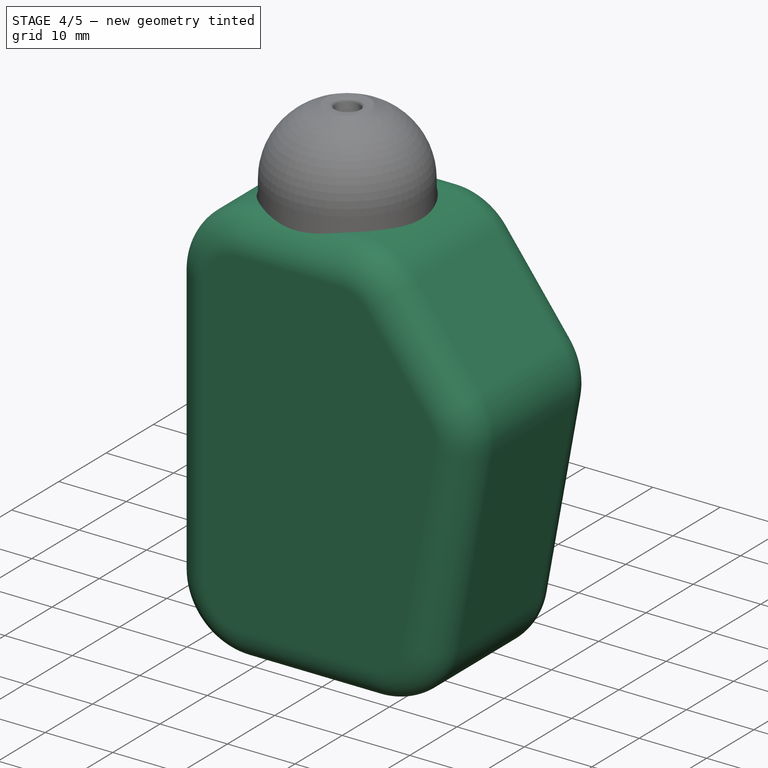
[diagram: stage 4 of 5 — iso view after this stage's code; geometry added in this stage tinted green]
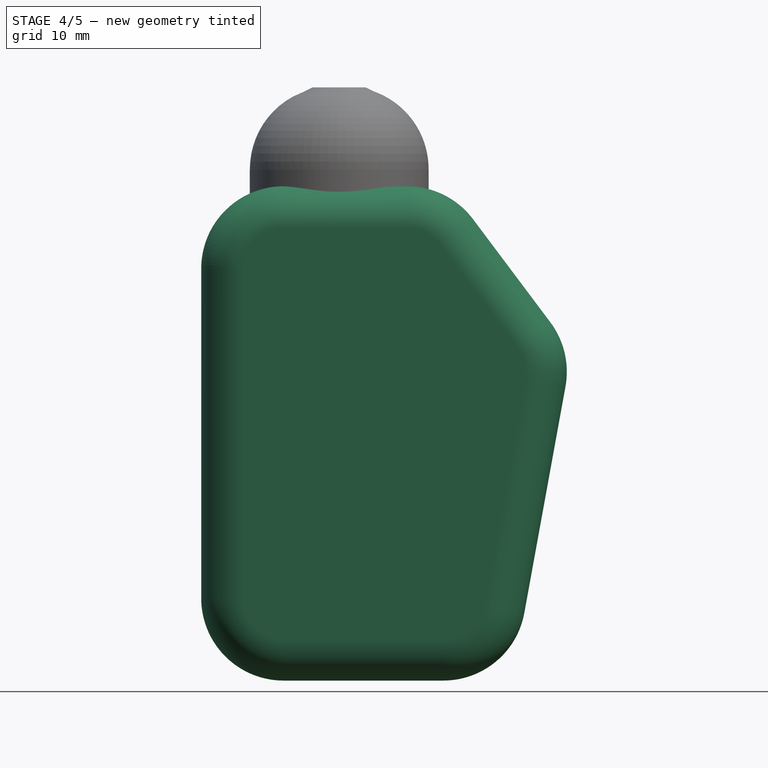
[diagram: stage 4 of 5 — front view after this stage's code; geometry added in this stage tinted green]
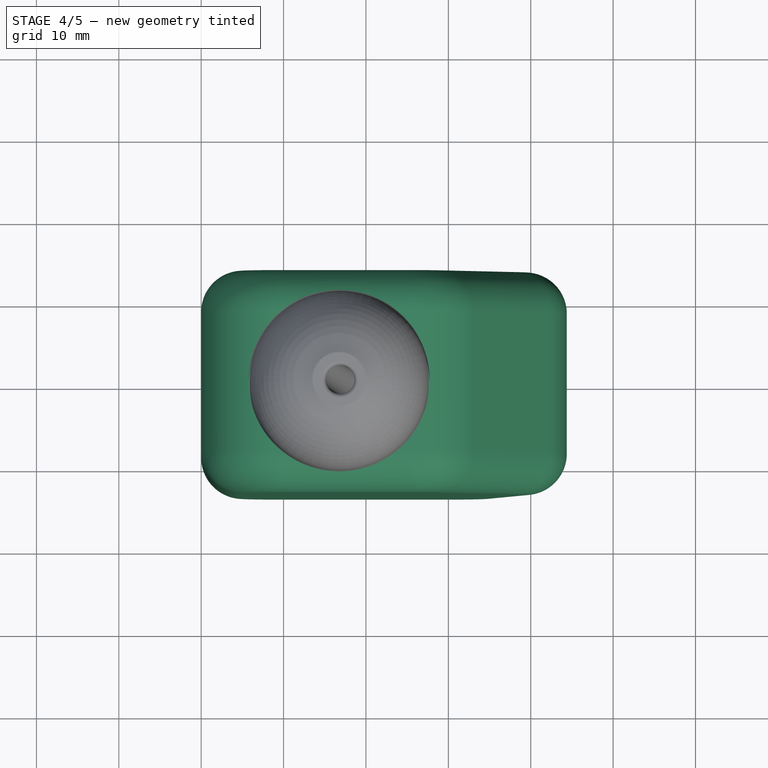
[diagram: stage 4 of 5 — top view after this stage's code; geometry added in this stage tinted green]
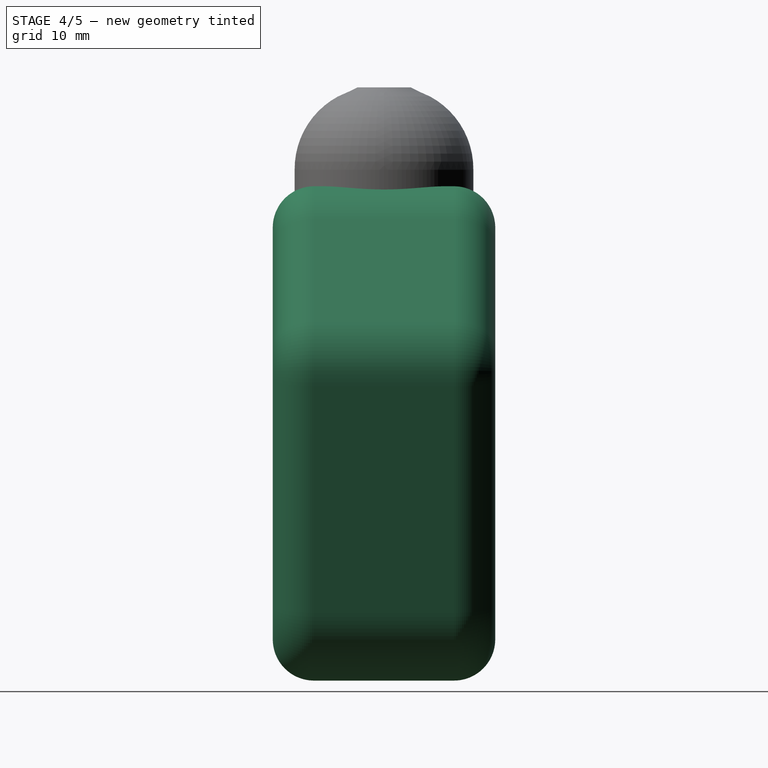
[diagram: stage 4 of 5 — right view after this stage's code; geometry added in this stage tinted green]
FEATURE [Sketcher::SketchObject] Sketch
  ArcFitTolerance = 1e-06
  AttachmentSupport = -> [XZ_Plane]
  FullyConstrained = true
  MakeInternals = false
  MapMode = 5
  Placement = pos=(0,0,0) rot=(1,0,0;1.5708rad)
  sketch-geometry (8):
    g0: LineSegment [constr] StartX=0 StartY=0 StartZ=0 EndX=0 EndY=75 EndZ=0
    g1: LineSegment StartX=0 StartY=75 StartZ=0 EndX=30 EndY=75 EndZ=0
    g2: LineSegment StartX=30 StartY=75 StartZ=0 EndX=45 EndY=55 EndZ=0
    g3: LineSegment [constr] StartX=45 StartY=55 StartZ=0 EndX=35 EndY=0 EndZ=0
    g4: LineSegment [constr] StartX=35 StartY=0 StartZ=0 EndX=0 EndY=0 EndZ=0
    g5: LineSegment StartX=0 StartY=75 StartZ=0 EndX=0 EndY=15 EndZ=0
    g6: LineSegment StartX=0 StartY=15 StartZ=0 EndX=37.7273 EndY=15 EndZ=0
    g7: LineSegment StartX=37.7273 StartY=15 StartZ=0 EndX=45 EndY=55 EndZ=0
  constraints (22):
    c: Coincident(g-1,g0)
    c: Coincident(g0,g1)
    c: Horizontal(g1)
    c: Coincident(g1,g2)
    c: Coincident(g2,g3)
    c: Coincident(g3,g4)
    c: Coincident(g4,g0)
    c: Vertical(g0)
    c: Horizontal(g4)
    c: DistanceX(g4,g4) = 35
    c: DistanceX(g1,g1) = 30
    c: DistanceY(g0,g0) = 75
    c: DistanceY(g2,g1) = 20
    c: DistanceX(g0,g2) = 45
    c: Coincident(g5,g0)
    c: Coincident(g6,g5)
    c: Horizontal(g6)
    c: Coincident(g7,g6)
    c: Coincident(g7,g2)
    c: PointOnObject(g6,g3)
    c: Vertical(g5)
    c: DistanceY(g0,g5) = 15
FEATURE [PartDesign::Pad] Pad
  Direction = (0,-1,2e-16)
  Length = 27
  Length2 = 10
  Midplane = true
  Placement = pos=(0,0,0) rot=(1,0,0;1.5708rad)
  Profile = -> Sketch
  ReferenceAxis = -> Sketch [N_Axis]
  Refine = true
  Suppressed = false
  Type = 0
FEATURE [PartDesign::Fillet] Fillet
  Base = -> Pad [Edge2,Edge5,Edge8,Edge1,Edge11]
  BaseFeature = -> Pad
  Placement = pos=(0,0,0) rot=(1,0,0;1.5708rad)
  Radius = 10
  Refine = true
  SupportTransform = false
  Suppressed = false
  UseAllEdges = false
FEATURE [PartDesign::Fillet] Fillet001
  Base = -> Fillet [Edge19,Edge8]
  BaseFeature = -> Fillet
  Placement = pos=(0,0,0) rot=(1,0,0;1.5708rad)
  Radius = 5
  Refine = true
  SupportTransform = false
  Suppressed = false
  UseAllEdges = false
FEATURE [Sketcher::SketchObject] Sketch006
  ArcFitTolerance = 1e-06
  AttachmentOffset = pos=(0,0,-25) rot=(0,0,1;0rad)
  AttachmentSupport = -> [Fillet001]
  FullyConstrained = true
  MakeInternals = false
  MapMode = 5
  Placement = pos=(0,6.6e-15,40) rot=(1,0,0;3.14159rad)
  sketch-geometry (1):
    g0: Circle CenterX=16.75 CenterY=0 CenterZ=0 NormalX=0 NormalY=0 NormalZ=1 AngleXU=0 Radius=11
  constraints (3):
    c: PointOnObject(g0,g-1)
    c: DistanceX(g-1,g0) = 16.75
    c: Diameter(g0) = 22
FEATURE [PartDesign::Pocket] Pocket
  BaseFeature = -> Fillet001
  Direction = (0,0,1)
  Length = 5
  Length2 = 5
  Placement = pos=(0,0,0) rot=(1,0,0;1.5708rad)
  Profile = -> Sketch006
  ReferenceAxis = -> Sketch006 [N_Axis]
  Refine = true
  Suppressed = false
  Type = 1
FEATURE [Part::Feature] Part__Feature  label="RP2350-Zero-mini"
  Placement = pos=(7.75,-3,39.5) rot=(1,0,0;4.71239rad)
  shape: bbox 18 x 4.88 x 24.16 mm, 130 faces (baked)
FEATURE [Sketcher::SketchObject] Sketch008
  ArcFitTolerance = 1e-06
  AttachmentSupport = -> [Pocket]
  ExternalGeometry = -> [Pocket]
  FullyConstrained = true
  MakeInternals = false
  MapMode = 5
  Placement = pos=(0,0,40) rot=(0,0,1;3.14159rad)
  sketch-geometry (19):
    g0: LineSegment [constr] StartX=-25.85 StartY=5.5 StartZ=0 EndX=-7.65 EndY=5.5 EndZ=0
    g1: LineSegment StartX=-7.65 StartY=5.5 StartZ=0 EndX=-7.65 EndY=1.3 EndZ=0
    g2: LineSegment [constr] StartX=-7.65 StartY=1.3 StartZ=0 EndX=-9.75 EndY=1.3 EndZ=0
    g3: LineSegment [constr] StartX=-9.75 StartY=1.3 StartZ=0 EndX=-9.75 EndY=-1.5 EndZ=0
    g4: LineSegment [constr] StartX=-9.75 StartY=-1.5 StartZ=0 EndX=-11.75 EndY=-1.5 EndZ=0
    g5: LineSegment [constr] StartX=-11.75 StartY=-1.5 StartZ=0 EndX=-11.75 EndY=-2.5 EndZ=0
    g6: LineSegment StartX=-11.75 StartY=-2.5 StartZ=0 EndX=-21.75 EndY=-2.5 EndZ=0
    g7: LineSegment [constr] StartX=-21.75 StartY=-2.5 StartZ=0 EndX=-21.75 EndY=-1.5 EndZ=0
    g8: LineSegment [constr] StartX=-21.75 StartY=-1.5 StartZ=0 EndX=-23.75 EndY=-1.5 EndZ=0
    g9: LineSegment [constr] StartX=-23.75 StartY=-1.5 StartZ=0 EndX=-23.75 EndY=1.3 EndZ=0
    g10: LineSegment [constr] StartX=-23.75 StartY=1.3 StartZ=0 EndX=-25.85 EndY=1.3 EndZ=0
    g11: LineSegment StartX=-25.85 StartY=1.3 StartZ=0 EndX=-25.85 EndY=5.5 EndZ=0
    g12: LineSegment StartX=-25.85 StartY=5.5 StartZ=0 EndX=-20.85 EndY=3.5 EndZ=0
    g13: LineSegment StartX=-20.85 StartY=3.5 StartZ=0 EndX=-12.65 EndY=3.5 EndZ=0
    g14: LineSegment StartX=-12.65 StartY=3.5 StartZ=0 EndX=-7.65 EndY=5.5 EndZ=0
    g15: LineSegment StartX=-25.85 StartY=1.3 StartZ=0 EndX=-21.75 EndY=1.3 EndZ=0
    g16: LineSegment StartX=-21.75 StartY=1.3 StartZ=0 EndX=-21.75 EndY=-2.5 EndZ=0
    g17: LineSegment StartX=-11.75 StartY=-2.5 StartZ=0 EndX=-11.75 EndY=1.3 EndZ=0
    g18: LineSegment StartX=-11.75 StartY=1.3 StartZ=0 EndX=-7.65 EndY=1.3 EndZ=0
  constraints (54):
    c: Horizontal(g0)
    c: Coincident(g0,g1)
    c: Vertical(g1)
    c: Coincident(g1,g2)
    c: Horizontal(g2)
    c: Coincident(g2,g3)
    c: Vertical(g3)
    c: Coincident(g3,g4)
    c: Horizontal(g4)
    c: Coincident(g4,g5)
    c: Vertical(g5)
    c: Coincident(g5,g6)
    c: Horizontal(g6)
    c: Coincident(g6,g7)
    c: Vertical(g7)
    c: Coincident(g7,g8)
    c: Horizontal(g8)
    c: Coincident(g8,g9)
    c: Vertical(g9)
    c: Coincident(g9,g10)
    c: Horizontal(g10)
    c: Coincident(g10,g11)
    c: Vertical(g11)
    c: Coincident(g0,g11)
    c: DistanceX(g0,g-3) = 9.1
    c: DistanceX(g0,g0) = 18.2
    c: DistanceY(g-3,g1) = 1.3
    c: Horizontal(g2,g9)
    c: DistanceX(g8,g-3) = 7
    c: DistanceX(g-3,g3) = 7
    c: DistanceY(g3,g-3) = 1.5
    c: Horizontal(g3,g7)
    c: DistanceX(g7,g-3) = 5
    c: DistanceX(g-3,g4) = 5
    c: DistanceY(g5,g-3) = 2.5
    c: DistanceY(g-3,g0) = 5.5
    c: Coincident(g0,g12)
    c: Coincident(g12,g13)
    c: Horizontal(g13)
    c: Coincident(g13,g14)
    c: Coincident(g14,g0)
    c: DistanceX(g13,g0) = 5
    c: DistanceX(g0,g12) = 5
    c: DistanceY(g12,g0) = 2
    c: Coincident(g15,g10)
    c: Horizontal(g15)
    c: Coincident(g16,g15)
    c: Coincident(g16,g6)
    c: Vertical(g16)
    c: Coincident(g17,g5)
    c: Vertical(g17)
    c: Coincident(g18,g17)
    c: Coincident(g18,g1)
    c: Horizontal(g18)
FEATURE [PartDesign::Pocket] Pocket001
  BaseFeature = -> Pocket
  Direction = (0,0,-1)
  Length = 24
  Length2 = 5
  Placement = pos=(0,0,0) rot=(1,0,0;1.5708rad)
  Profile = -> Sketch008
  ReferenceAxis = -> Sketch008 [N_Axis]
  Refine = true
  Suppressed = false
  Type = 0
FEATURE [Sketcher::SketchObject] Sketch009
  ArcFitTolerance = 1e-06
  AttachmentSupport = -> [Pocket001]
  ExternalGeometry = -> [Pocket001]
  FullyConstrained = true
  MakeInternals = false
  MapMode = 5
  Placement = pos=(0,0,40) rot=(0,0,1;3.14159rad)
  sketch-geometry (8):
    g0: LineSegment StartX=-21.75 StartY=1.3 StartZ=0 EndX=-23.45 EndY=1.3 EndZ=0
    g1: LineSegment StartX=-23.45 StartY=1.3 StartZ=0 EndX=-23.45 EndY=-1.7 EndZ=0
    g2: LineSegment StartX=-23.45 StartY=-1.7 StartZ=0 EndX=-21.75 EndY=-1.7 EndZ=0
    g3: LineSegment StartX=-21.75 StartY=-1.7 StartZ=0 EndX=-21.75 EndY=1.3 EndZ=0
    g4: LineSegment StartX=-11.75 StartY=1.3 StartZ=0 EndX=-11.75 EndY=-1.7 EndZ=0
    g5: LineSegment StartX=-11.75 StartY=-1.7 StartZ=0 EndX=-10.05 EndY=-1.7 EndZ=0
    g6: LineSegment StartX=-10.05 StartY=-1.7 StartZ=0 EndX=-10.05 EndY=1.3 EndZ=0
    g7: LineSegment StartX=-10.05 StartY=1.3 StartZ=0 EndX=-11.75 EndY=1.3 EndZ=0
  constraints (22):
    c: Coincident(g0,g1)
    c: Coincident(g1,g2)
    c: Coincident(g2,g3)
    c: Coincident(g3,g0)
    c: Horizontal(g0)
    c: Horizontal(g2)
    c: Vertical(g1)
    c: Vertical(g3)
    c: Coincident(g0,g-3)
    c: DistanceY(g1,g1) = 3
    c: DistanceX(g2,g2) = 1.7
    c: Coincident(g4,g5)
    c: Coincident(g5,g6)
    c: Coincident(g6,g7)
    c: Coincident(g7,g4)
    c: Vertical(g4)
    c: Vertical(g6)
    c: Horizontal(g5)
    c: Horizontal(g7)
    c: Coincident(g4,g-4)
    c: Equal(g2,g5)
    c: Equal(g1,g6)
FEATURE [PartDesign::Pocket] Pocket002
  BaseFeature = -> Pocket001
  Direction = (0,0,-1)
  Length = 16
  Length2 = 5
  Placement = pos=(0,0,0) rot=(1,0,0;1.5708rad)
  Profile = -> Sketch009
  ReferenceAxis = -> Sketch009 [N_Axis]
  Refine = true
  Suppressed = false
  Type = 0
FEATURE [Sketcher::SketchObject] Sketch010
  ArcFitTolerance = 1e-06
  AttachmentSupport = -> [Pocket002]
  ExternalGeometry = -> [Pocket002]
  FullyConstrained = true
  MakeInternals = false
  MapMode = 5
  Placement = pos=(0,6.6e-15,15) rot=(1,0,0;3.14159rad)
  sketch-geometry (4):
    g0: LineSegment StartX=12.2 StartY=1.45 StartZ=0 EndX=12.2 EndY=-1.94 EndZ=0
    g1: LineSegment StartX=12.2 StartY=-1.94 StartZ=0 EndX=21.3 EndY=-1.94 EndZ=0
    g2: LineSegment StartX=21.3 StartY=-1.94 StartZ=0 EndX=21.3 EndY=1.45 EndZ=0
    g3: LineSegment StartX=21.3 StartY=1.45 StartZ=0 EndX=12.2 EndY=1.45 EndZ=0
  constraints (12):
    c: Coincident(g0,g1)
    c: Coincident(g1,g2)
    c: Coincident(g2,g3)
    c: Coincident(g3,g0)
    c: Vertical(g0)
    c: Vertical(g2)
    c: Horizontal(g1)
    c: Horizontal(g3)
    c: DistanceY(g2,g2) = 3.39
    c: DistanceX(g3,g3) = 9.1
    c: DistanceX(g-5,g0) = 0.45
    c: DistanceY(g-4,g1) = 0.56
FEATURE [PartDesign::Pocket] Pocket003
  BaseFeature = -> Pocket002
  Direction = (0,0,1)
  Length = 1
  Length2 = 5
  Placement = pos=(0,0,0) rot=(1,0,0;1.5708rad)
  Profile = -> Sketch010
  ReferenceAxis = -> Sketch010 [N_Axis]
  Refine = true
  Suppressed = false
  Type = 0
FEATURE [PartDesign::Fillet] Fillet002
  Base = -> Pocket003 [Edge141,Edge140]
  BaseFeature = -> Pocket003
  Placement = pos=(0,0,0) rot=(1,0,0;1.5708rad)
  Radius = 1
  Refine = true
  SupportTransform = false
  Suppressed = false
  UseAllEdges = false
FEATURE [PartDesign::Fillet] Fillet003
  Base = -> Fillet002 [Edge16,Edge12]
  BaseFeature = -> Fillet002
  Placement = pos=(0,0,0) rot=(1,0,0;1.5708rad)
  Radius = 1
  Refine = true
  SupportTransform = false
  Suppressed = false
  UseAllEdges = false
FEATURE [PartDesign::Fillet] Fillet004
  Base = -> Fillet003 [Edge85,Edge101]
  BaseFeature = -> Fillet003
  Placement = pos=(0,0,0) rot=(1,0,0;1.5708rad)
  Radius = 1
  Refine = true
  SupportTransform = false
  Suppressed = false
  UseAllEdges = false
FEATURE [PartDesign::Fillet] Fillet005
  Base = -> Fillet004 [Edge33,Edge36]
  BaseFeature = -> Fillet004
  Placement = pos=(0,0,0) rot=(1,0,0;1.5708rad)
  Radius = 0.5
  Refine = true
  SupportTransform = false
  Suppressed = false
  UseAllEdges = false
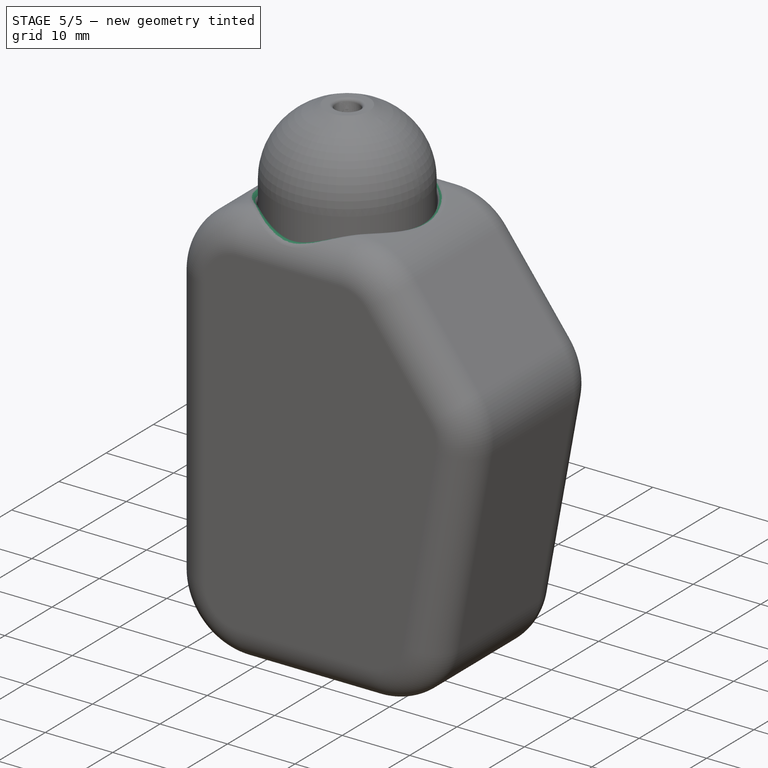
[diagram: stage 5 of 5 — iso view after this stage's code; geometry added in this stage tinted green]
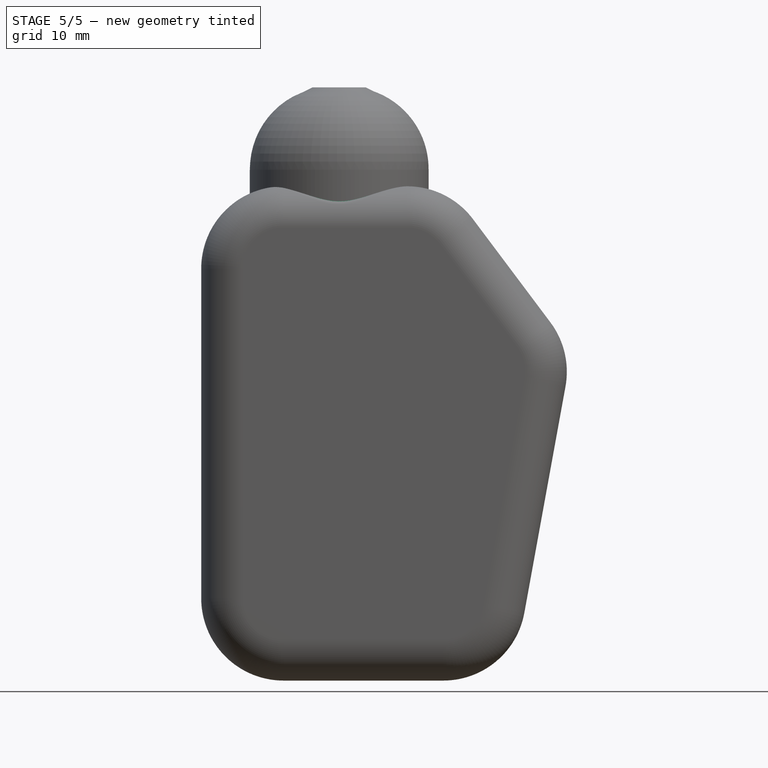
[diagram: stage 5 of 5 — front view after this stage's code; geometry added in this stage tinted green]
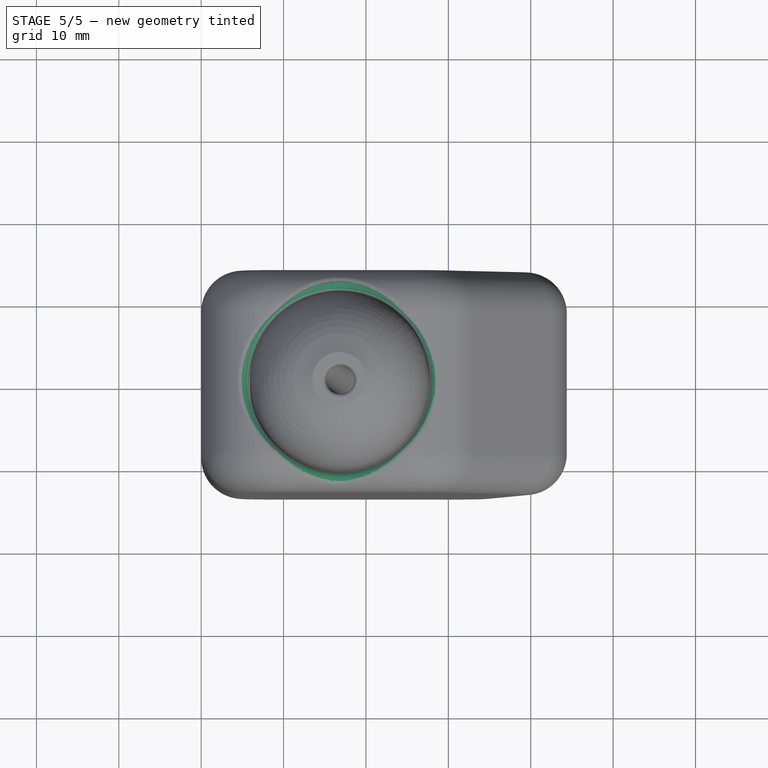
[diagram: stage 5 of 5 — top view after this stage's code; geometry added in this stage tinted green]
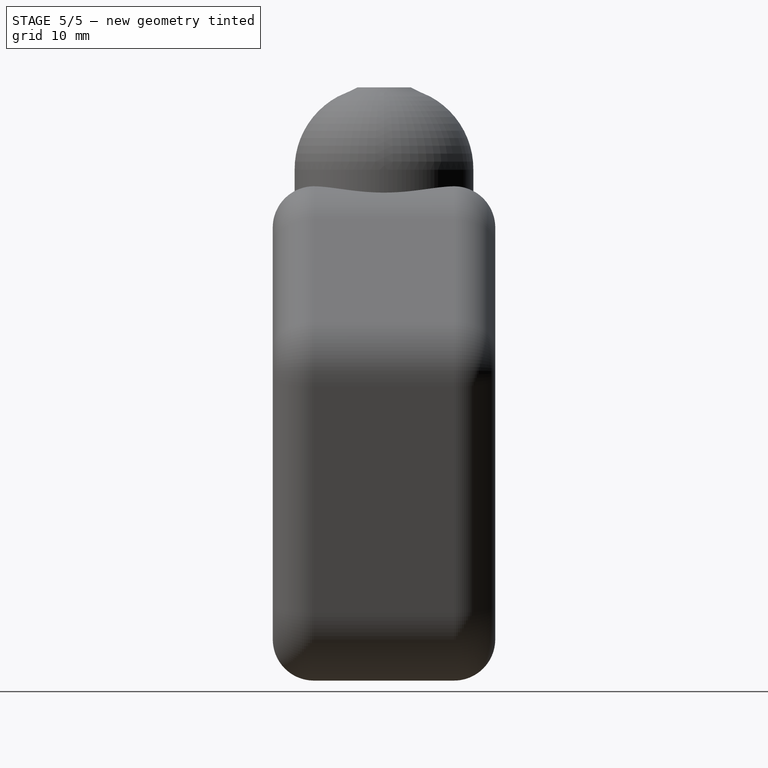
[diagram: stage 5 of 5 — right view after this stage's code; geometry added in this stage tinted green]
FEATURE [PartDesign::Fillet] Fillet006
  Base = -> Fillet005 [Edge85,Edge82]
  BaseFeature = -> Fillet005
  Placement = pos=(0,0,0) rot=(1,0,0;1.5708rad)
  Radius = 0.5
  Refine = true
  SupportTransform = false
  Suppressed = false
  UseAllEdges = false
FEATURE [PartDesign::Fillet] Fillet007
  Base = -> Fillet006 [Edge24,Edge56]
  BaseFeature = -> Fillet006
  Placement = pos=(0,0,0) rot=(1,0,0;1.5708rad)
  Radius = 0.25
  Refine = true
  SupportTransform = false
  Suppressed = false
  UseAllEdges = false
FEATURE [PartDesign::Fillet] Fillet008
  Base = -> Fillet007 [Edge38,Edge95]
  BaseFeature = -> Fillet007
  Placement = pos=(0,0,0) rot=(1,0,0;1.5708rad)
  Radius = 0.5
  Refine = true
  SupportTransform = false
  Suppressed = false
  UseAllEdges = false
FEATURE [PartDesign::Fillet] Fillet009
  Base = -> Fillet008 [Edge79,Edge60]
  BaseFeature = -> Fillet008
  Placement = pos=(0,0,0) rot=(1,0,0;1.5708rad)
  Radius = 0.13
  Refine = true
  SupportTransform = false
  Suppressed = false
  UseAllEdges = false
FEATURE [PartDesign::Fillet] Fillet010
  Base = -> Fillet009 [Edge42,Edge38]
  BaseFeature = -> Fillet009
  Placement = pos=(0,0,0) rot=(1,0,0;1.5708rad)
  Radius = 10
  Refine = true
  SupportTransform = false
  Suppressed = false
  UseAllEdges = false
FEATURE [PartDesign::Fillet] Fillet011
  Base = -> Fillet010 [Edge27,Edge44]
  BaseFeature = -> Fillet010
  Placement = pos=(0,0,0) rot=(1,0,0;1.5708rad)
  Radius = 1
  Refine = true
  SupportTransform = false
  Suppressed = false
  UseAllEdges = false
FEATURE [PartDesign::Fillet] Fillet012
  Base = -> Fillet011 [Edge80]
  BaseFeature = -> Fillet011
  Placement = pos=(0,0,0) rot=(1,0,0;1.5708rad)
  Radius = 0.25
  Refine = true
  SupportTransform = false
  Suppressed = false
  UseAllEdges = false
FEATURE [PartDesign::Fillet] Fillet013
  Base = -> Fillet012 [Edge30]
  BaseFeature = -> Fillet012
  Placement = pos=(0,0,0) rot=(1,0,0;1.5708rad)
  Radius = 0.5
  Refine = true
  SupportTransform = false
  Suppressed = false
  UseAllEdges = false
FEATURE [PartDesign::Fillet] Fillet014
  Base = -> Fillet013 [Edge44]
  BaseFeature = -> Fillet013
  Placement = pos=(0,0,0) rot=(1,0,0;1.5708rad)
  Radius = 0.5
  Refine = true
  SupportTransform = false
  Suppressed = false
  UseAllEdges = false
FEATURE [PartDesign::Fillet] Fillet015
  Base = -> Fillet014 [Edge88]
  BaseFeature = -> Fillet014
  Placement = pos=(0,0,0) rot=(1,0,0;1.5708rad)
  Radius = 0.9
  Refine = true
  SupportTransform = false
  Suppressed = false
  UseAllEdges = false
FEATURE [Sketcher::SketchObject] Sketch021
  ArcFitTolerance = 1e-06
  AttachmentSupport = -> [Fillet015]
  ExternalGeometry = -> [Fillet015]
  FullyConstrained = true
  MakeInternals = false
  MapMode = 5
  Placement = pos=(0,6.6e-15,15) rot=(1,0,0;3.14159rad)
  sketch-geometry (10):
    g0: LineSegment StartX=12.2 StartY=-2.94 StartZ=0 EndX=21.3 EndY=-2.94 EndZ=0
    g1: LineSegment StartX=22.3 StartY=-1.94 StartZ=0 EndX=22.3 EndY=1.45 EndZ=0
    g2: LineSegment StartX=21.3 StartY=2.45 StartZ=0 EndX=12.2 EndY=2.45 EndZ=0
    g3: LineSegment StartX=11.2 StartY=1.45 StartZ=0 EndX=11.2 EndY=-1.94 EndZ=0
    g4: ArcOfCircle CenterX=12.2 CenterY=-1.94 CenterZ=0 NormalX=0 NormalY=0 NormalZ=1 AngleXU=0 Radius=1 StartAngle=3.14159 EndAngle=4.71239
    g5: ArcOfCircle CenterX=21.3 CenterY=-1.94 CenterZ=0 NormalX=0 NormalY=0 NormalZ=1 AngleXU=0 Radius=1 StartAngle=4.71239 EndAngle=6.28319
    g6: ArcOfCircle CenterX=21.3 CenterY=1.45 CenterZ=0 NormalX=0 NormalY=0 NormalZ=1 AngleXU=0 Radius=1 StartAngle=0 EndAngle=1.5708
    g7: ArcOfCircle CenterX=12.2 CenterY=1.45 CenterZ=0 NormalX=0 NormalY=0 NormalZ=1 AngleXU=0 Radius=1 StartAngle=1.5708 EndAngle=3.14159
    g8: GeomPoint [constr] X=11.2 Y=-2.94 Z=0
    g9: GeomPoint [constr] X=22.3 Y=2.45 Z=0
  constraints (24):
    c: Tangent(g0,g4) = -1.5708
    c: Tangent(g0,g5) = -1.5708
    c: Tangent(g1,g5) = -1.5708
    c: Tangent(g1,g6) = -1.5708
    c: Tangent(g2,g6) = -1.5708
    c: Tangent(g2,g7) = -1.5708
    c: Tangent(g3,g7) = -1.5708
    c: Tangent(g3,g4) = -1.5708
    c: Horizontal(g0)
    c: Horizontal(g2)
    c: Vertical(g1)
    c: Vertical(g3)
    c: Equal(g4,g5)
    c: Equal(g5,g6)
    c: Equal(g6,g7)
    c: PointOnObject(g8,g0)
    c: PointOnObject(g8,g3)
    c: PointOnObject(g9,g1)
    c: PointOnObject(g9,g2)
    c: Radius(g5) = 1
    c: DistanceY(g-3,g2) = 1
    c: DistanceX(g3,g-5) = 1
    c: DistanceX(g-6,g1) = 1
    c: DistanceY(g0,g-4) = 1
FEATURE [PartDesign::Pocket] Pocket007
  BaseFeature = -> Fillet015
  Direction = (0,0,1)
  Length = 0.5
  Length2 = 5
  Placement = pos=(0,0,0) rot=(1,0,0;1.5708rad)
  Profile = -> Sketch021
  ReferenceAxis = -> Sketch021 [N_Axis]
  Refine = true
  Suppressed = false
  Type = 0
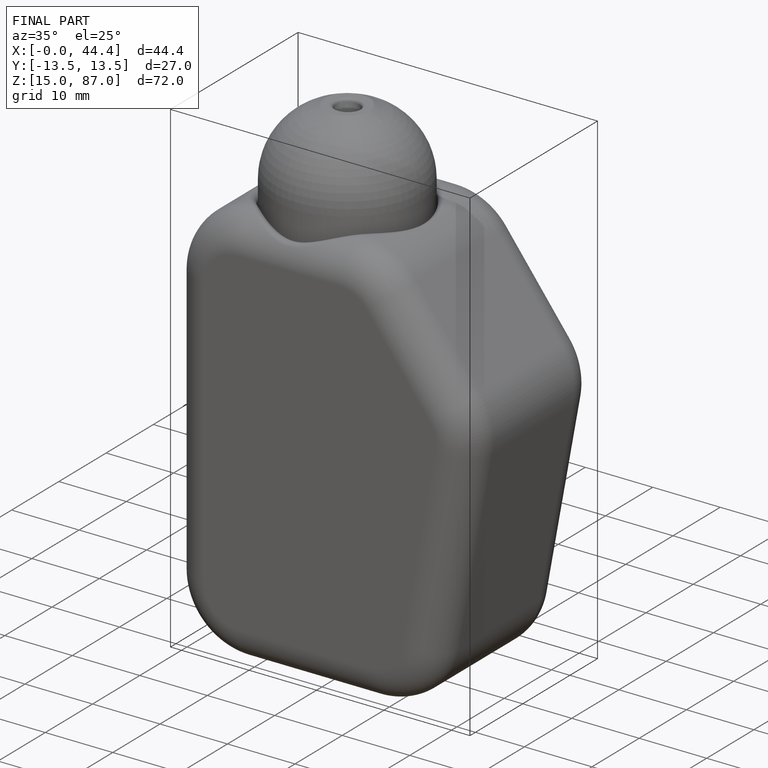
[diagram: finished part — iso view with bounding-box wireframe]
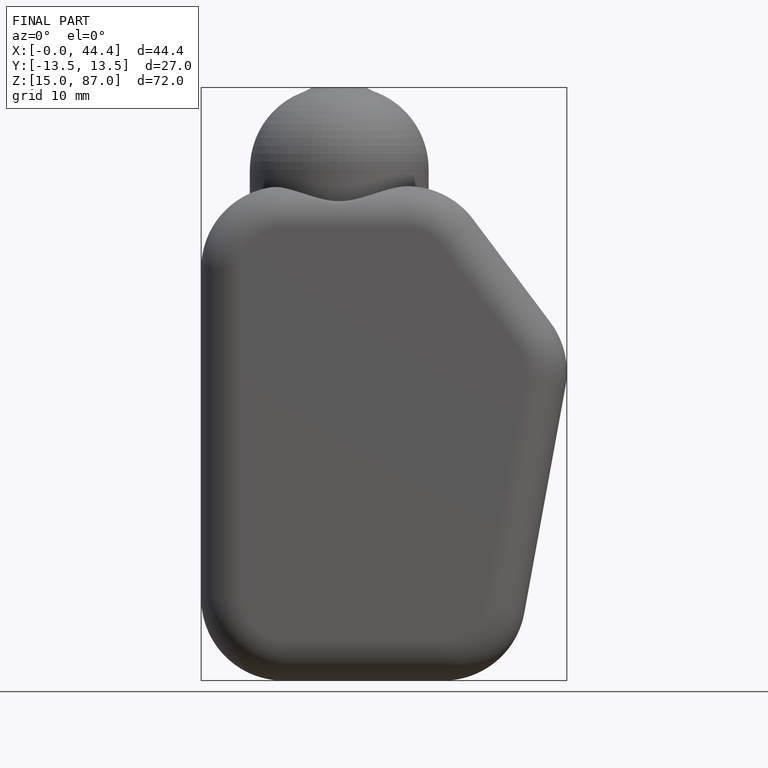
[diagram: finished part — front view with bounding-box wireframe]
